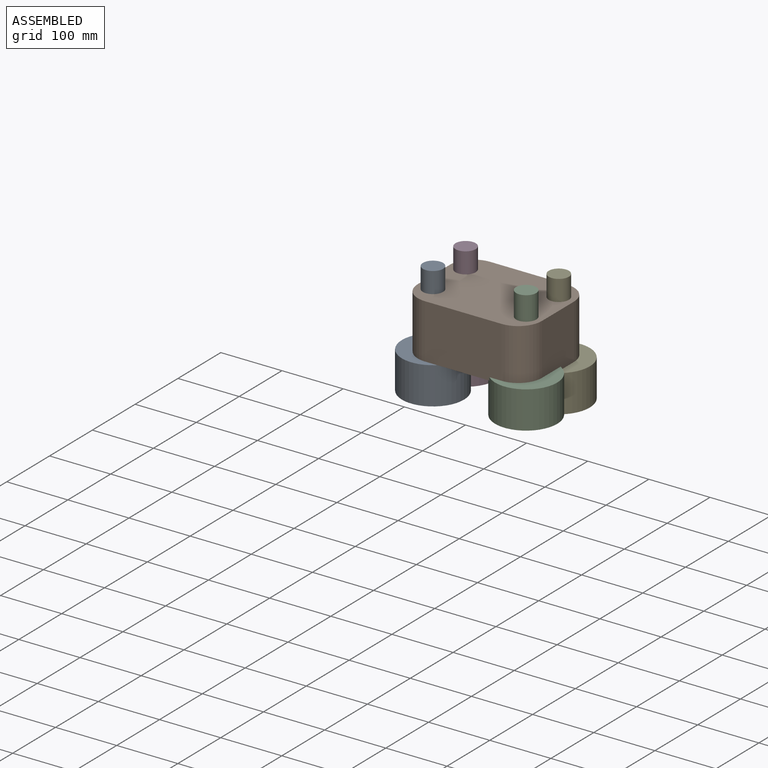
[diagram: assembled view]
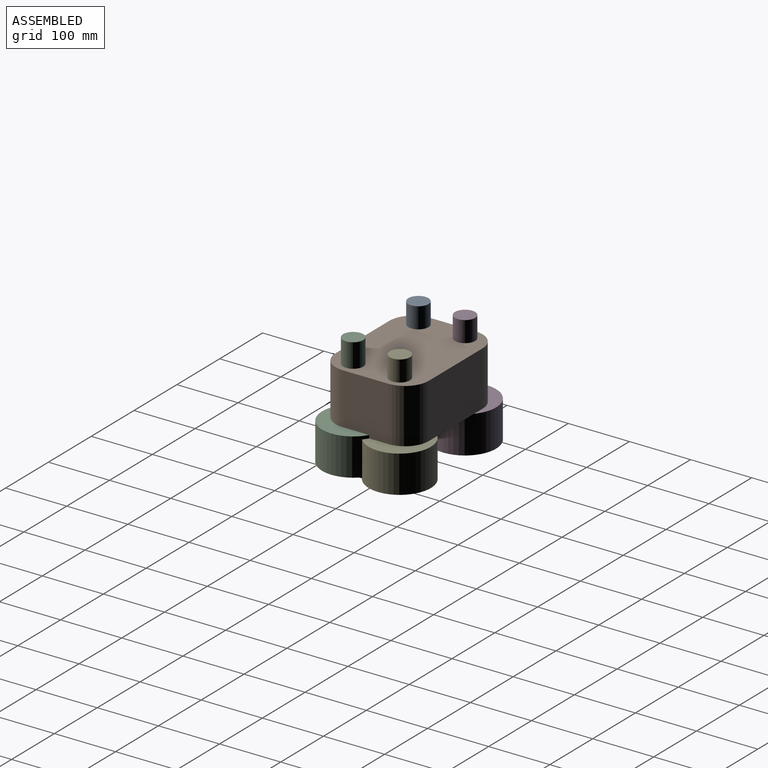
[diagram: assembled view, second angle]
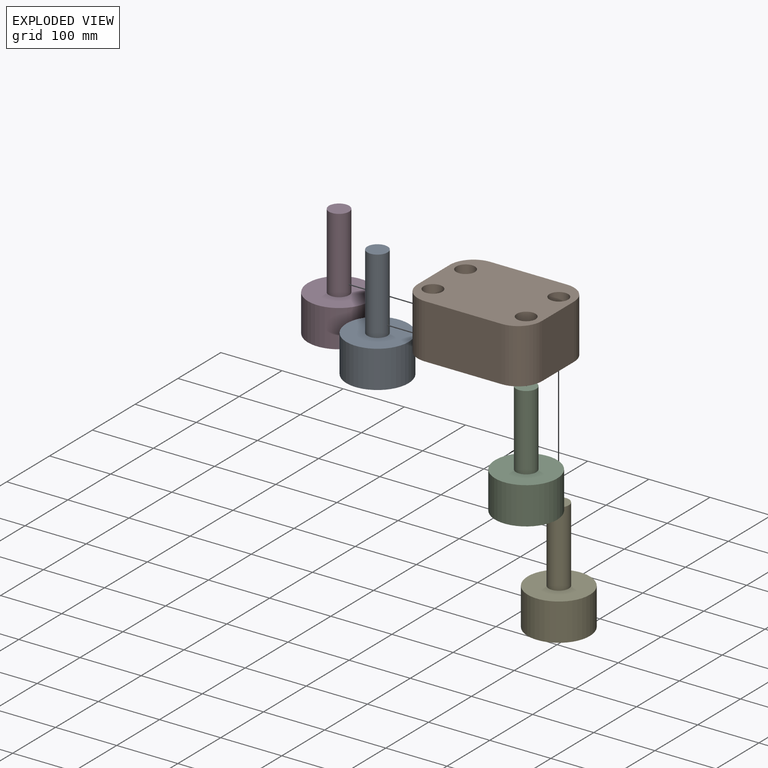
[diagram: exploded view]
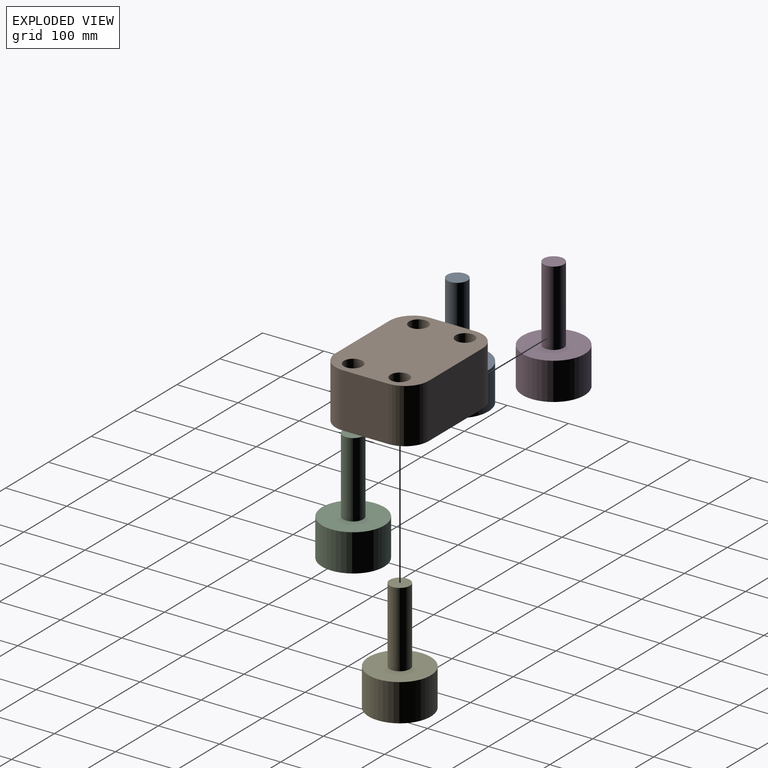
[diagram: exploded view, second angle]
ASSEMBLY  parts=5 mates=2
PART A: 5 faces, bbox 101.6x101.6x184.2 mm
  f0: plane 101.6x101.6mm, normal (0,0,-1), area 8107.3mm2, adj f1
  f1: cylinder r=50.8mm len=101.6mm, axis (0,0,-1), area 19457.6mm2, adj f0,f2
  f2: plane 101.6x101.6mm, normal (0,0,1), area 7249.4mm2, adj f1,f3
  f3: cylinder r=16.53mm len=123.19mm, axis (0,0,-1), area 12790.9mm2, adj f2,f4
  f4: plane 33.05x33.05mm, normal (0,0,1), area 857.9mm2, adj f3
PART B: 14 faces, bbox 203.2x152.4x89.1 mm
  f0: plane 125.45x89.08mm, normal (0,-1,0), area 11175.6mm2, adj f8,f9,f10,f13
  f1: plane 89.08x74.65mm, normal (1,0,0), area 6650.1mm2, adj f8,f9,f10,f11
  f2: plane 125.45x89.08mm, normal (0,1,0), area 11175.6mm2, adj f8,f9,f11,f12
  f3: cylinder r=15.31mm len=89.08mm, axis (0,0,-1), area 8569.8mm2, adj f8,f9
  f4: cylinder r=15.31mm len=89.08mm, axis (0,0,-1), area 8569.8mm2, adj f8,f9
  f5: cylinder r=15.31mm len=89.08mm, axis (0,0,-1), area 8569.8mm2, adj f8,f9
  f6: cylinder r=15.31mm len=89.08mm, axis (0,0,-1), area 8569.8mm2, adj f8,f9
  f7: plane 89.08x74.65mm, normal (-1,0,0), area 6650.1mm2, adj f8,f9,f12,f13
  f8: plane 203.2x152.4mm, normal (0,0,1), area 26724.7mm2, adj f0,f1,f2,f3,f4,f5,f6,f7
  f9: plane 203.2x152.4mm, normal (0,0,-1), area 26724.7mm2, adj f0,f1,f2,f3,f4,f5,f6,f7
  f10: cylinder r=38.88mm len=89.08mm, axis (0,0,1), area 5439.9mm2, adj f0,f1,f8,f9
  f11: cylinder r=38.88mm len=89.08mm, axis (0,0,-1), area 5439.9mm2, adj f1,f2,f8,f9
  f12: cylinder r=38.88mm len=89.08mm, axis (0,0,1), area 5439.9mm2, adj f2,f7,f8,f9
  f13: cylinder r=38.88mm len=89.08mm, axis (0,0,-1), area 5439.9mm2, adj f0,f7,f8,f9
PART C: same geometry as A
PART D: same geometry as A
PART E: same geometry as A
PLACE A t=(0,-76.2,0)mm
PLACE B at identity fixed
PLACE C rot(axis=(0,0,-1),172.3deg) t=(-4.42,-10.55,5.01)mm
PLACE D at identity
PLACE E t=(152.4,0,0)mm
MATE fastened E.f1 <-> B.f6  axis (0,0,-1) through (76.2,38.1,0)mm
MATE cylindrical C.f1 <-> B.f5  axis (0,0,-1) through (76.2,-38.1,5.01)mm
